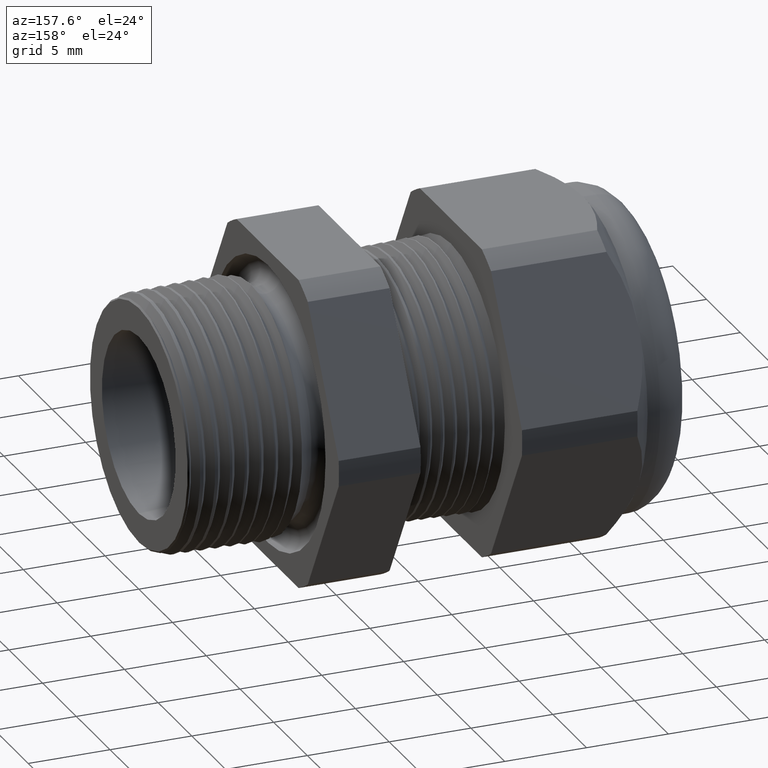
[diagram: clean part render]
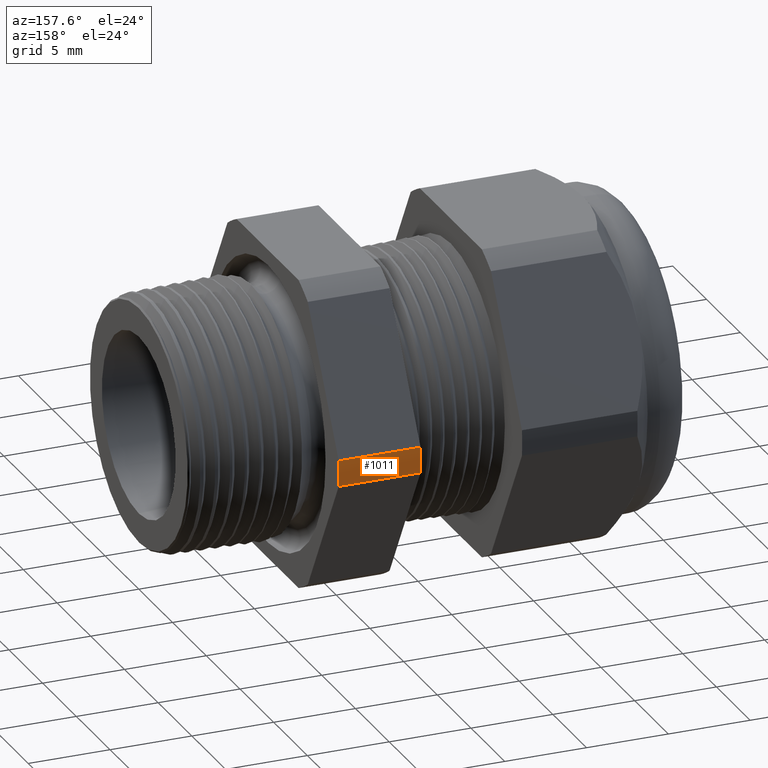
[diagram: same view with one face highlighted and labeled with its STEP entity id]
A machine part, auxiliary view. The second image highlights one B-rep face of the part: STEP entity #1011.
In plain terms, the highlighted cylindrical surface (partial cylindrical patch) has radius 10.5727 mm, axis along (-1, 0, 0).
Its self-contained STEP definition (entity closure, byte-faithful):
#796 = VERTEX_POINT ( 'NONE', #2972 ) ;
#798 = EDGE_CURVE ( 'NONE', #796, #799, #3030, .T. ) ;
#799 = VERTEX_POINT ( 'NONE', #3025 ) ;
#941 = EDGE_CURVE ( 'NONE', #796, #942, #3263, .T. ) ;
#942 = VERTEX_POINT ( 'NONE', #3259 ) ;
#1007 = EDGE_CURVE ( 'NONE', #799, #1008, #3366, .T. ) ;
#1008 = VERTEX_POINT ( 'NONE', #3358 ) ;
#1011 = ADVANCED_FACE ( 'NONE', ( #3353 ), #3352, .T. ) ;
#1012 = EDGE_LOOP ( 'NONE', ( #1013, #1014, #1015, #1016 ) ) ;
#1013 = ORIENTED_EDGE ( 'NONE', *, *, #1007, .F. ) ;
#1014 = ORIENTED_EDGE ( 'NONE', *, *, #798, .F. ) ;
#1015 = ORIENTED_EDGE ( 'NONE', *, *, #941, .T. ) ;
#1016 = ORIENTED_EDGE ( 'NONE', *, *, #1017, .F. ) ;
#1017 = EDGE_CURVE ( 'NONE', #1008, #942, #3410, .T. ) ;
#2972 = CARTESIAN_POINT ( 'NONE',  ( -0.3100000000000000000, 0.4150909474475088000, -0.03104138925901222000 ) ) ;
#3025 = CARTESIAN_POINT ( 'NONE',  ( -0.3100000000000000000, 0.4150909474475088000, 0.03104138925901233200 ) ) ;
#3026 = DIRECTION ( 'NONE',  ( 0.0000000000000000000, 0.0000000000000000000, -1.000000000000000000 ) ) ;
#3027 = DIRECTION ( 'NONE',  ( 1.000000000000000000, 0.0000000000000000000, 0.0000000000000000000 ) ) ;
#3028 = CARTESIAN_POINT ( 'NONE',  ( -0.3100000000000000000, 0.0000000000000000000, 0.0000000000000000000 ) ) ;
#3029 = AXIS2_PLACEMENT_3D ( 'NONE', #3028, #3027, #3026 ) ;
#3030 = CIRCLE ( 'NONE', #3029, 0.4162500000000000100 ) ;
#3259 = CARTESIAN_POINT ( 'NONE',  ( -0.5068503937007874400, 0.4150909474475088000, -0.03104138925901223100 ) ) ;
#3260 = DIRECTION ( 'NONE',  ( -1.000000000000000000, 0.0000000000000000000, 0.0000000000000000000 ) ) ;
#3261 = VECTOR ( 'NONE', #3260, 39.37007874015748100 ) ;
#3262 = CARTESIAN_POINT ( 'NONE',  ( 0.0000000000000000000, 0.4150909474475088000, -0.03104138925901223100 ) ) ;
#3263 = LINE ( 'NONE', #3262, #3261 ) ;
#3352 = CYLINDRICAL_SURFACE ( 'NONE', #3415, 0.4162500000000000100 ) ;
#3353 = FACE_OUTER_BOUND ( 'NONE', #1012, .T. ) ;
#3358 = CARTESIAN_POINT ( 'NONE',  ( -0.5068503937007874400, 0.4150909474475088000, 0.03104138925901233200 ) ) ;
#3359 = DIRECTION ( 'NONE',  ( -1.000000000000000000, 0.0000000000000000000, 0.0000000000000000000 ) ) ;
#3360 = VECTOR ( 'NONE', #3359, 39.37007874015748100 ) ;
#3361 = CARTESIAN_POINT ( 'NONE',  ( 0.0000000000000000000, 0.4150909474475088000, 0.03104138925901233200 ) ) ;
#3366 = LINE ( 'NONE', #3361, #3360 ) ;
#3407 = DIRECTION ( 'NONE',  ( 0.0000000000000000000, 0.0000000000000000000, 1.000000000000000000 ) ) ;
#3408 = DIRECTION ( 'NONE',  ( -1.000000000000000000, 0.0000000000000000000, 0.0000000000000000000 ) ) ;
#3409 = AXIS2_PLACEMENT_3D ( 'NONE', #3414, #3408, #3407 ) ;
#3410 = CIRCLE ( 'NONE', #3409, 0.4162500000000000100 ) ;
#3411 = DIRECTION ( 'NONE',  ( 0.0000000000000000000, 0.0000000000000000000, 1.000000000000000000 ) ) ;
#3412 = DIRECTION ( 'NONE',  ( -1.000000000000000000, 0.0000000000000000000, 0.0000000000000000000 ) ) ;
#3413 = CARTESIAN_POINT ( 'NONE',  ( 0.0000000000000000000, 0.0000000000000000000, 0.0000000000000000000 ) ) ;
#3414 = CARTESIAN_POINT ( 'NONE',  ( -0.5068503937007874400, 0.0000000000000000000, 0.0000000000000000000 ) ) ;
#3415 = AXIS2_PLACEMENT_3D ( 'NONE', #3413, #3412, #3411 ) ;